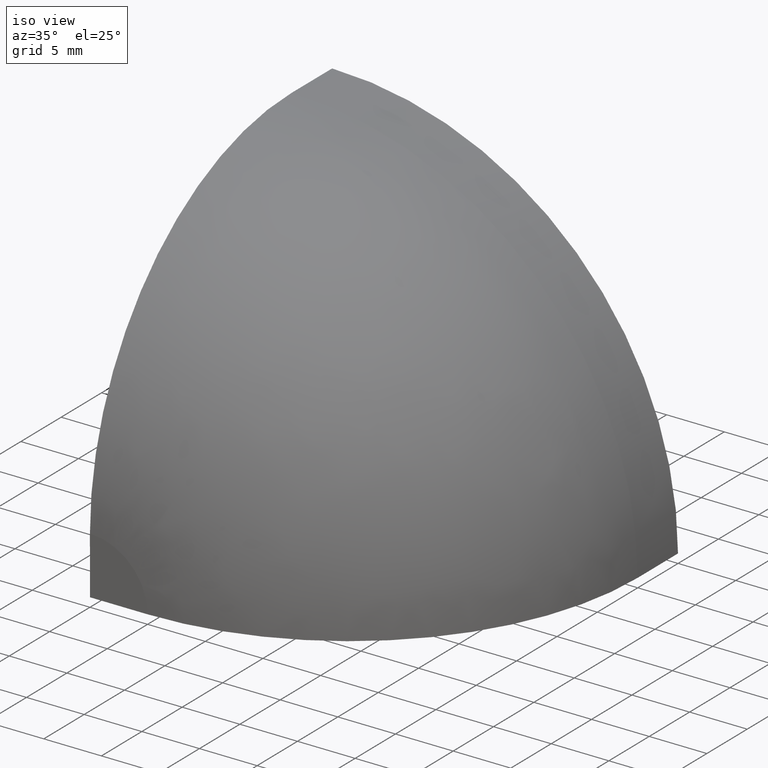
[diagram: clean part render]
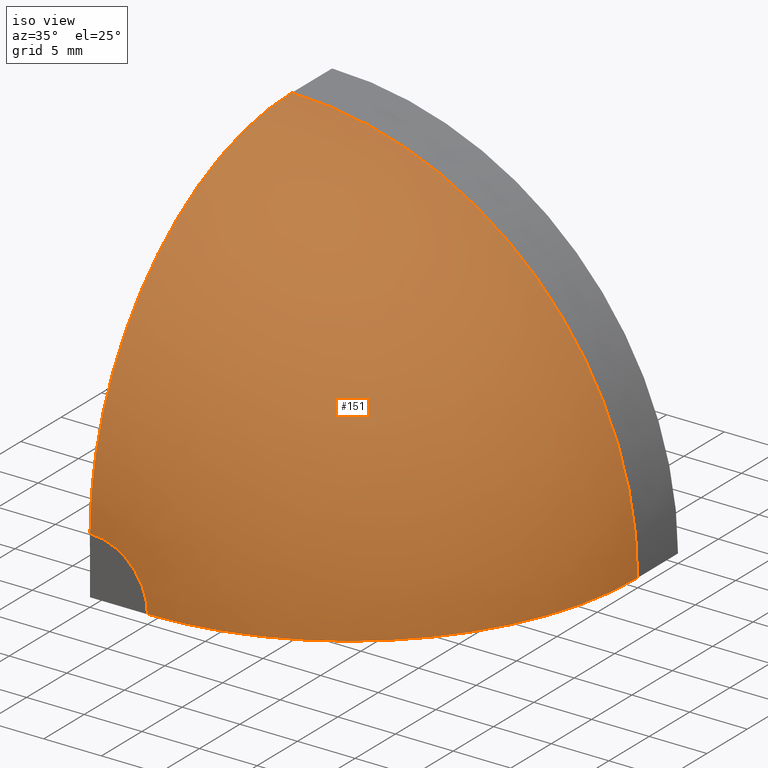
[diagram: same view with one face highlighted and labeled with its STEP entity id]
A machine part, iso view. The second image highlights one B-rep face of the part: STEP entity #151.
In plain terms, the highlighted face is a freeform B-spline surface patch.
Its self-contained STEP definition (entity closure, byte-faithful):
#44=FACE_OUTER_BOUND('',#53,.T.);
#53=EDGE_LOOP('',(#107,#108,#109,#110));
#62=CIRCLE('',#162,24.9999999999996);
#63=CIRCLE('',#163,29.9999999662594);
#64=CIRCLE('',#164,24.9999999999996);
#65=CIRCLE('',#165,4.98962214811873);
#72=VERTEX_POINT('',#242);
#73=VERTEX_POINT('',#243);
#74=VERTEX_POINT('',#245);
#75=VERTEX_POINT('',#247);
#86=EDGE_CURVE('',#72,#73,#62,.T.);
#87=EDGE_CURVE('',#72,#74,#63,.T.);
#88=EDGE_CURVE('',#75,#74,#64,.T.);
#89=EDGE_CURVE('',#73,#75,#65,.T.);
#107=ORIENTED_EDGE('',*,*,#86,.F.);
#108=ORIENTED_EDGE('',*,*,#87,.T.);
#109=ORIENTED_EDGE('',*,*,#88,.F.);
#110=ORIENTED_EDGE('',*,*,#89,.F.);
#149=(
BOUNDED_SURFACE()
B_SPLINE_SURFACE(2,2,((#227,#228,#229),(#230,#231,#232),(#233,#234,#235),
(#236,#237,#238),(#239,#240,#241)),.UNSPECIFIED.,.F.,.F.,.F.)
B_SPLINE_SURFACE_WITH_KNOTS((3,2,3),(3,3),(-1.11244347067442E-14,0.785605719766225,
1.57121143953246),(1.5707963267949,3.14159265358979),.UNSPECIFIED.)
GEOMETRIC_REPRESENTATION_ITEM()
RATIONAL_B_SPLINE_SURFACE(((1.,0.707106781186548,1.),(0.9238398133445,0.65325339674601,
0.9238398133445),(1.,0.707106781186548,1.),(0.923839813344502,0.653253396746012,
0.923839813344502),(1.,0.707106781186548,1.)))
REPRESENTATION_ITEM('')
SURFACE()
);
#151=ADVANCED_FACE('',(#44),#149,.F.);
#162=AXIS2_PLACEMENT_3D('',#244,#181,#182);
#163=AXIS2_PLACEMENT_3D('',#246,#183,#184);
#164=AXIS2_PLACEMENT_3D('',#248,#185,#186);
#165=AXIS2_PLACEMENT_3D('',#249,#187,#188);
#181=DIRECTION('center_axis',(0.,0.,-1.));
#182=DIRECTION('ref_axis',(0.000415112725642761,0.999999913840709,0.));
#183=DIRECTION('center_axis',(0.,-1.,0.));
#184=DIRECTION('ref_axis',(1.,0.,-1.48029736783175E-16));
#185=DIRECTION('center_axis',(-1.,0.,6.12323399573677E-17));
#186=DIRECTION('ref_axis',(2.5418323537187E-20,0.999999913840709,0.000415112725642761));
#187=DIRECTION('center_axis',(-6.29343229637442E-16,-1.,-1.5193689603784E-15));
#188=DIRECTION('ref_axis',(1.,-8.90025730740955E-16,2.22506432685239E-16));
#227=CARTESIAN_POINT('Ctrl Pts',(29.9999999662594,-4.99999998528202,0.));
#228=CARTESIAN_POINT('Ctrl Pts',(29.9999999662594,-4.99999998528202,29.9999999662594));
#229=CARTESIAN_POINT('Ctrl Pts',(0.,-4.99999998528202,29.9999999662594));
#230=CARTESIAN_POINT('Ctrl Pts',(29.9999999662595,-15.3583787679337,0.));
#231=CARTESIAN_POINT('Ctrl Pts',(29.9999999662595,-15.3583787679337,29.9999999662595));
#232=CARTESIAN_POINT('Ctrl Pts',(0.,-15.3583787679337,29.9999999662595));
#233=CARTESIAN_POINT('Ctrl Pts',(22.6740000022797,-22.6813382470415,0.));
#234=CARTESIAN_POINT('Ctrl Pts',(22.6740000022797,-22.6813382470415,22.6740000022797));
#235=CARTESIAN_POINT('Ctrl Pts',(0.,-22.6813382470415,22.6740000022797));
#236=CARTESIAN_POINT('Ctrl Pts',(15.3480000382998,-30.0042977261494,0.));
#237=CARTESIAN_POINT('Ctrl Pts',(15.3480000382998,-30.0042977261494,15.3480000382998));
#238=CARTESIAN_POINT('Ctrl Pts',(0.,-30.0042977261494,15.3480000382998));
#239=CARTESIAN_POINT('Ctrl Pts',(4.98962214811873,-29.9999978312996,0.));
#240=CARTESIAN_POINT('Ctrl Pts',(4.98962214811873,-29.9999978312996,4.98962214811873));
#241=CARTESIAN_POINT('Ctrl Pts',(0.,-29.9999978312996,4.98962214811873));
#242=CARTESIAN_POINT('',(29.9999999662594,-4.99999998528203,0.));
#243=CARTESIAN_POINT('',(4.98962214811873,-29.9999978312975,0.));
#244=CARTESIAN_POINT('Origin',(4.9999999662598,-4.9999999852823,0.));
#245=CARTESIAN_POINT('',(1.83697019665502E-15,-4.99999998528203,29.9999999662594));
#246=CARTESIAN_POINT('Origin',(4.44089209850063E-15,-4.99999998528203,4.44089209850063E-15));
#247=CARTESIAN_POINT('',(3.05526239632417E-16,-29.9999978312975,4.98962214811873));
#248=CARTESIAN_POINT('Origin',(3.06161697720847E-16,-4.9999999852823,4.9999999662598));
#249=CARTESIAN_POINT('Origin',(0.,-29.9999978312975,-1.11022302462516E-15));